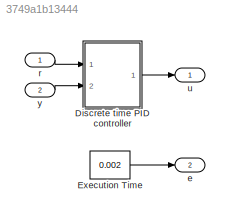
MODEL slx_3749a1b13444
KIND model
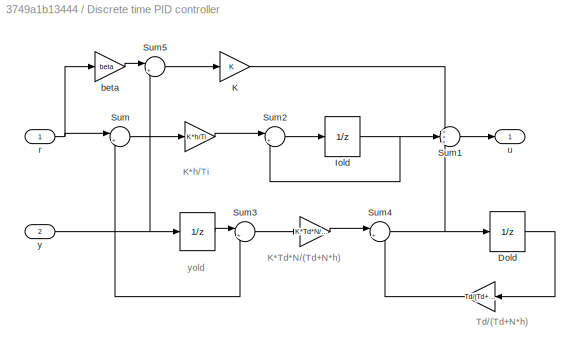
BLOCK [SubSystem] Discrete time PID controller
  FunctionWithSeparateData = off
  MaskCallbackString = |||||
  MaskEnableString = on,on,on,on,on,on
  MaskHideContents = off
  MaskIconFrame = on
  MaskIconOpaque = on
  MaskIconRotate = none
  MaskIconUnits = autoscale
  MaskPortRotate = default
  MaskPromptString = K|Ti|Td|beta|N|h
  MaskStyleString = edit,edit,edit,edit,edit,edit
  MaskToolTipString = on,on,on,on,on,on
  MaskTunableValueString = on,on,on,on,on,on
  MaskValueString = 0.96|0.12|0.049|0.5|10|0.006
  MaskVariables = K=@1;Ti=@2;Td=@3;beta=@4;N=@5;h=@6;
  MaskVisibilityString = on,on,on,on,on,on
  MinAlgLoopOccurrences = off
  Opaque = off
  Ports = [2, 1]
  PropExecContextOutsideSubsystem = off
  RTWSystemCode = Auto
  RequestExecContextInheritance = off
  Variant = off
BLOCK [Gain] Discrete time PID controller/ 
  Gain = K*h/Ti
BLOCK [Gain] Discrete time PID controller/             
  Gain = K*Td*N/(Td+N*h)
BLOCK [Gain] Discrete time PID controller/              
  Gain = Td/(Td+N*h)
BLOCK [UnitDelay] Discrete time PID controller/Dold
BLOCK [UnitDelay] Discrete time PID controller/Iold 
BLOCK [Gain] Discrete time PID controller/K
  Gain = K
BLOCK [Sum] Discrete time PID controller/Sum
  IconShape = round
  Inputs = |+-
  Ports = [2, 1]
BLOCK [Sum] Discrete time PID controller/Sum1
  IconShape = round
  Inputs = +++
  Ports = [3, 1]
BLOCK [Sum] Discrete time PID controller/Sum2
  IconShape = round
  Inputs = |++
  Ports = [2, 1]
BLOCK [Sum] Discrete time PID controller/Sum3
  IconShape = round
  Inputs = |+-
  Ports = [2, 1]
BLOCK [Sum] Discrete time PID controller/Sum4
  IconShape = round
  Inputs = |++
  Ports = [2, 1]
BLOCK [Sum] Discrete time PID controller/Sum5
  IconShape = round
  Inputs = |+-
  Ports = [2, 1]
BLOCK [Gain] Discrete time PID controller/beta
  Gain = beta
BLOCK [Inport] Discrete time PID controller/r
  IconDisplay = Port number
BLOCK [Outport] Discrete time PID controller/u
  IconDisplay = Port number
BLOCK [Inport] Discrete time PID controller/y
  IconDisplay = Port number
  Port = 2
BLOCK [Constant] Execution Time
  Value = 0.002
BLOCK [Outport] e
  IconDisplay = Port number
  Port = 2
BLOCK [Inport] r
  IconDisplay = Port number
BLOCK [Outport] u
  IconDisplay = Port number
BLOCK [Inport] y
  IconDisplay = Port number
  Port = 2
ANNOTATION Discrete time PID controller: K*Td*N/(Td+N*h)
ANNOTATION Discrete time PID controller: K*h/Ti
ANNOTATION Discrete time PID controller: Td/(Td+N*h)
ANNOTATION Discrete time PID controller: yold
LINE Discrete time PID controller/              :1 -> Discrete time PID controller/Sum4:2
LINE Discrete time PID controller/             :1 -> Discrete time PID controller/Sum4:1
NET Discrete time PID controller/ :1 -> Discrete time PID controller/Sum2:1, Discrete time PID controller/Sum3:1
LINE Discrete time PID controller/Dold:1 -> Discrete time PID controller/              :1
NET Discrete time PID controller/Iold :1 -> Discrete time PID controller/Sum1:2, Discrete time PID controller/Sum2:2
LINE Discrete time PID controller/K:1 -> Discrete time PID controller/Sum1:1
LINE Discrete time PID controller/Sum1:1 -> Discrete time PID controller/u:1
LINE Discrete time PID controller/Sum2:1 -> Discrete time PID controller/Iold :1
LINE Discrete time PID controller/Sum3:1 -> Discrete time PID controller/             :1
NET Discrete time PID controller/Sum4:1 -> Discrete time PID controller/Dold:1, Discrete time PID controller/Sum1:3
LINE Discrete time PID controller/Sum5:1 -> Discrete time PID controller/K:1
LINE Discrete time PID controller/Sum:1 -> Discrete time PID controller/ :1
LINE Discrete time PID controller/beta:1 -> Discrete time PID controller/Sum5:1
NET Discrete time PID controller/r:1 -> Discrete time PID controller/Sum:1, Discrete time PID controller/beta:1
NET Discrete time PID controller/y:1 -> Discrete time PID controller/ :1, Discrete time PID controller/Sum3:2, Discrete time PID controller/Sum5:2, Discrete time PID controller/Sum:2
LINE Discrete time PID controller:1 -> u:1
LINE Execution Time:1 -> e:1
LINE r:1 -> Discrete time PID controller:1
LINE y:1 -> Discrete time PID controller:2
note: NET lines group one-source signal fan-out (src -> all destinations, sorted); 1:1 wires keep LINE
